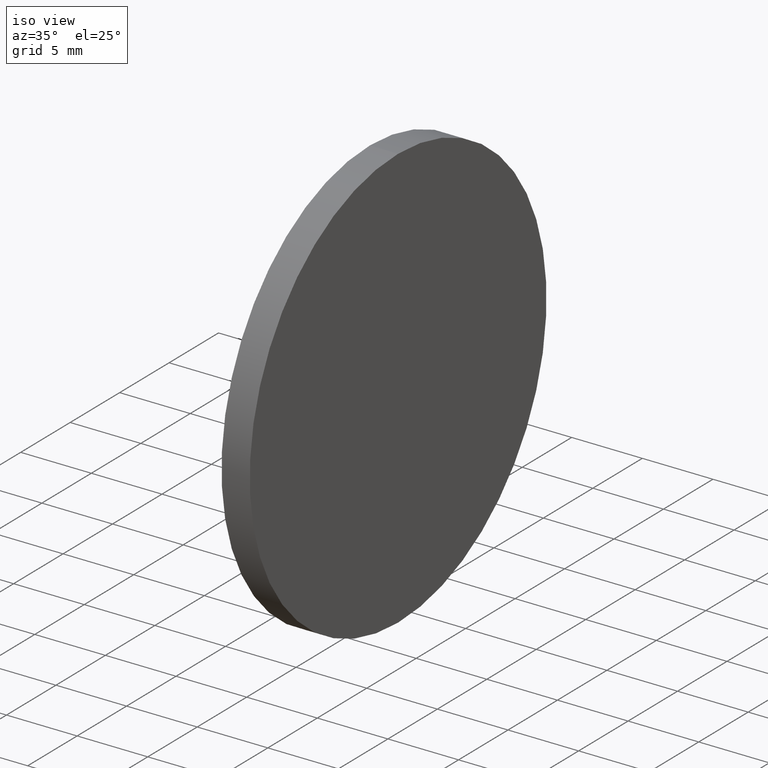
[diagram: clean part render]
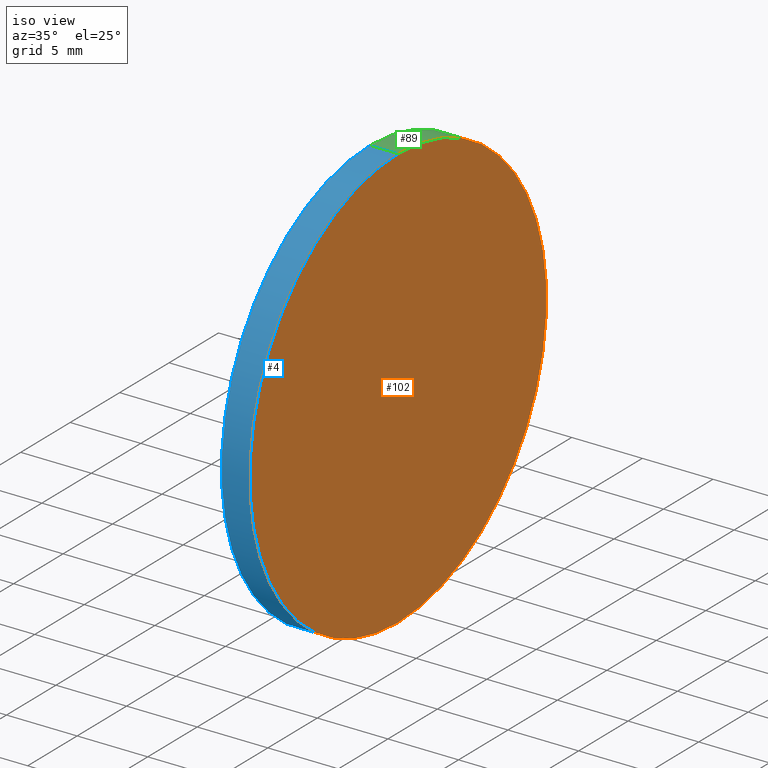
[diagram: same view with three faces highlighted in distinct colors, each labeled with its STEP entity id]
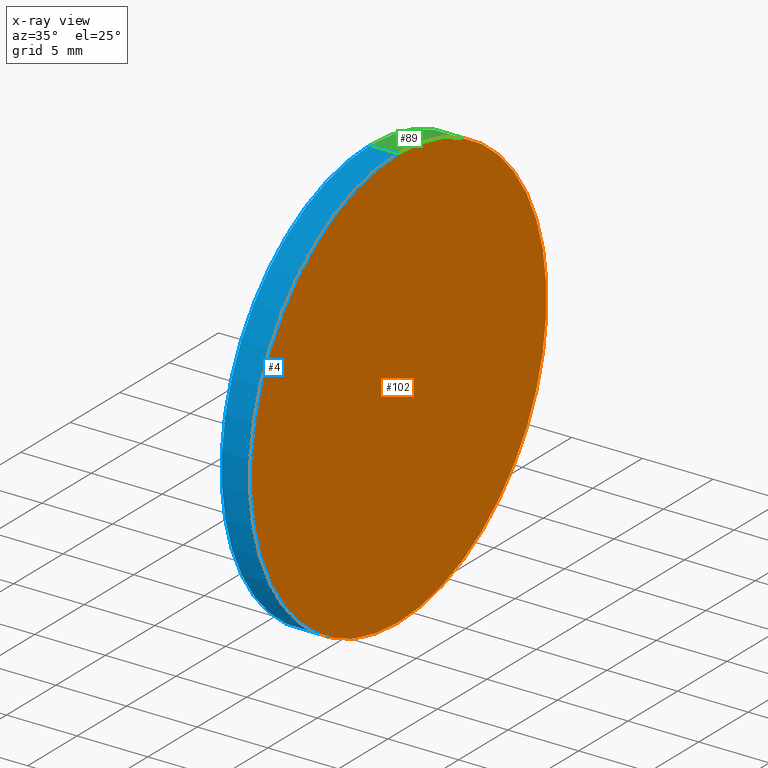
[diagram: x-ray of the same camera — body ghosted, the three highlighted faces saturated]
A machine part, iso view with three faces highlighted in distinct colors.
The next image is the same camera in x-ray (body ghosted, the three faces saturated) — at least one of them is partly hidden behind the body in this view.
Their STEP definitions:

[orange] entity #102 — the highlighted planar face has unit normal (-1, 0, -0).
#11 = PLANE ( 'NONE',  #92 ) ;
#24 = AXIS2_PLACEMENT_3D ( 'NONE', #118, #109, #137 ) ;
#31 = CARTESIAN_POINT ( 'NONE',  ( 262.1163036661670300, 92.29317934901541800, 0.0000000000000000000 ) ) ;
#33 = VERTEX_POINT ( 'NONE', #105 ) ;
#34 = CARTESIAN_POINT ( 'NONE',  ( 262.1163036661670300, 77.29317934901541800, 0.0000000000000000000 ) ) ;
#39 = EDGE_CURVE ( 'NONE', #33, #65, #74, .T. ) ;
#44 = EDGE_LOOP ( 'NONE', ( #120, #115 ) ) ;
#60 = FACE_OUTER_BOUND ( 'NONE', #44, .T. ) ;
#65 = VERTEX_POINT ( 'NONE', #66 ) ;
#66 = CARTESIAN_POINT ( 'NONE',  ( 262.1163036661670300, 77.29317934901541800, 15.00000000000000000 ) ) ;
#70 = DIRECTION ( 'NONE',  ( 0.0000000000000000000, 0.0000000000000000000, 1.000000000000000000 ) ) ;
#74 = CIRCLE ( 'NONE', #24, 15.00000000000000000 ) ;
#92 = AXIS2_PLACEMENT_3D ( 'NONE', #31, #126, #97 ) ;
#97 = DIRECTION ( 'NONE',  ( -0.0000000000000000000, 0.0000000000000000000, 1.000000000000000000 ) ) ;
#101 = AXIS2_PLACEMENT_3D ( 'NONE', #34, #103, #70 ) ;
#102 = ADVANCED_FACE ( 'NONE', ( #60 ), #11, .F. ) ;
#103 = DIRECTION ( 'NONE',  ( -1.000000000000000000, -0.0000000000000000000, -0.0000000000000000000 ) ) ;
#105 = CARTESIAN_POINT ( 'NONE',  ( 262.1163036661670300, 77.29317934901541800, -15.00000000000000000 ) ) ;
#109 = DIRECTION ( 'NONE',  ( -1.000000000000000000, -0.0000000000000000000, -0.0000000000000000000 ) ) ;
#114 = EDGE_CURVE ( 'NONE', #65, #33, #134, .T. ) ;
#115 = ORIENTED_EDGE ( 'NONE', *, *, #39, .F. ) ;
#118 = CARTESIAN_POINT ( 'NONE',  ( 262.1163036661670300, 77.29317934901541800, 0.0000000000000000000 ) ) ;
#120 = ORIENTED_EDGE ( 'NONE', *, *, #114, .F. ) ;
#126 = DIRECTION ( 'NONE',  ( -1.000000000000000000, 0.0000000000000000000, -0.0000000000000000000 ) ) ;
#134 = CIRCLE ( 'NONE', #101, 15.00000000000000000 ) ;
#137 = DIRECTION ( 'NONE',  ( 0.0000000000000000000, 0.0000000000000000000, 1.000000000000000000 ) ) ;

[blue] entity #4 — the highlighted cylindrical surface (partial cylindrical patch) has radius 15 mm, axis along (-1, -0, -0).
#2 = CARTESIAN_POINT ( 'NONE',  ( 260.1163036661670800, 77.29317934901541800, 0.0000000000000000000 ) ) ;
#3 = VERTEX_POINT ( 'NONE', #84 ) ;
#4 = ADVANCED_FACE ( 'NONE', ( #63 ), #40, .T. ) ;
#6 = VECTOR ( 'NONE', #111, 1000.000000000000000 ) ;
#14 = CARTESIAN_POINT ( 'NONE',  ( 260.1163036661670800, 77.29317934901541800, -15.00000000000000000 ) ) ;
#18 = VERTEX_POINT ( 'NONE', #14 ) ;
#24 = AXIS2_PLACEMENT_3D ( 'NONE', #118, #109, #137 ) ;
#29 = DIRECTION ( 'NONE',  ( 0.0000000000000000000, 0.0000000000000000000, 1.000000000000000000 ) ) ;
#33 = VERTEX_POINT ( 'NONE', #105 ) ;
#38 = VECTOR ( 'NONE', #41, 1000.000000000000000 ) ;
#39 = EDGE_CURVE ( 'NONE', #33, #65, #74, .T. ) ;
#40 = CYLINDRICAL_SURFACE ( 'NONE', #51, 15.00000000000000000 ) ;
#41 = DIRECTION ( 'NONE',  ( -1.000000000000000000, -0.0000000000000000000, -0.0000000000000000000 ) ) ;
#48 = EDGE_LOOP ( 'NONE', ( #139, #95, #117, #135 ) ) ;
#51 = AXIS2_PLACEMENT_3D ( 'NONE', #119, #76, #29 ) ;
#54 = EDGE_CURVE ( 'NONE', #33, #18, #83, .T. ) ;
#57 = DIRECTION ( 'NONE',  ( 0.0000000000000000000, 0.0000000000000000000, 1.000000000000000000 ) ) ;
#63 = FACE_OUTER_BOUND ( 'NONE', #48, .T. ) ;
#65 = VERTEX_POINT ( 'NONE', #66 ) ;
#66 = CARTESIAN_POINT ( 'NONE',  ( 262.1163036661670300, 77.29317934901541800, 15.00000000000000000 ) ) ;
#67 = CIRCLE ( 'NONE', #82, 15.00000000000000000 ) ;
#74 = CIRCLE ( 'NONE', #24, 15.00000000000000000 ) ;
#76 = DIRECTION ( 'NONE',  ( -1.000000000000000000, -0.0000000000000000000, -0.0000000000000000000 ) ) ;
#77 = DIRECTION ( 'NONE',  ( -1.000000000000000000, -0.0000000000000000000, -0.0000000000000000000 ) ) ;
#82 = AXIS2_PLACEMENT_3D ( 'NONE', #2, #77, #57 ) ;
#83 = LINE ( 'NONE', #87, #38 ) ;
#84 = CARTESIAN_POINT ( 'NONE',  ( 260.1163036661670800, 77.29317934901541800, 15.00000000000000000 ) ) ;
#87 = CARTESIAN_POINT ( 'NONE',  ( 254.0008019926160300, 77.29317934901541800, -15.00000000000000000 ) ) ;
#90 = CARTESIAN_POINT ( 'NONE',  ( 254.0008019926160300, 77.29317934901541800, 15.00000000000000000 ) ) ;
#93 = LINE ( 'NONE', #90, #6 ) ;
#95 = ORIENTED_EDGE ( 'NONE', *, *, #39, .T. ) ;
#105 = CARTESIAN_POINT ( 'NONE',  ( 262.1163036661670300, 77.29317934901541800, -15.00000000000000000 ) ) ;
#109 = DIRECTION ( 'NONE',  ( -1.000000000000000000, -0.0000000000000000000, -0.0000000000000000000 ) ) ;
#111 = DIRECTION ( 'NONE',  ( -1.000000000000000000, -0.0000000000000000000, -0.0000000000000000000 ) ) ;
#117 = ORIENTED_EDGE ( 'NONE', *, *, #124, .T. ) ;
#118 = CARTESIAN_POINT ( 'NONE',  ( 262.1163036661670300, 77.29317934901541800, 0.0000000000000000000 ) ) ;
#119 = CARTESIAN_POINT ( 'NONE',  ( 254.0008019926160300, 77.29317934901541800, 0.0000000000000000000 ) ) ;
#124 = EDGE_CURVE ( 'NONE', #65, #3, #93, .T. ) ;
#135 = ORIENTED_EDGE ( 'NONE', *, *, #138, .F. ) ;
#137 = DIRECTION ( 'NONE',  ( 0.0000000000000000000, 0.0000000000000000000, 1.000000000000000000 ) ) ;
#138 = EDGE_CURVE ( 'NONE', #18, #3, #67, .T. ) ;
#139 = ORIENTED_EDGE ( 'NONE', *, *, #54, .F. ) ;

[green] entity #89 — the highlighted cylindrical surface (partial cylindrical patch) has radius 15 mm, axis along (-1, -0, -0).
#3 = VERTEX_POINT ( 'NONE', #84 ) ;
#6 = VECTOR ( 'NONE', #111, 1000.000000000000000 ) ;
#14 = CARTESIAN_POINT ( 'NONE',  ( 260.1163036661670800, 77.29317934901541800, -15.00000000000000000 ) ) ;
#18 = VERTEX_POINT ( 'NONE', #14 ) ;
#19 = EDGE_CURVE ( 'NONE', #3, #18, #116, .T. ) ;
#20 = DIRECTION ( 'NONE',  ( -1.000000000000000000, -0.0000000000000000000, -0.0000000000000000000 ) ) ;
#26 = ORIENTED_EDGE ( 'NONE', *, *, #54, .T. ) ;
#28 = AXIS2_PLACEMENT_3D ( 'NONE', #99, #75, #108 ) ;
#30 = ORIENTED_EDGE ( 'NONE', *, *, #114, .T. ) ;
#33 = VERTEX_POINT ( 'NONE', #105 ) ;
#34 = CARTESIAN_POINT ( 'NONE',  ( 262.1163036661670300, 77.29317934901541800, 0.0000000000000000000 ) ) ;
#38 = VECTOR ( 'NONE', #41, 1000.000000000000000 ) ;
#41 = DIRECTION ( 'NONE',  ( -1.000000000000000000, -0.0000000000000000000, -0.0000000000000000000 ) ) ;
#53 = DIRECTION ( 'NONE',  ( 0.0000000000000000000, 0.0000000000000000000, 1.000000000000000000 ) ) ;
#54 = EDGE_CURVE ( 'NONE', #33, #18, #83, .T. ) ;
#55 = CARTESIAN_POINT ( 'NONE',  ( 254.0008019926160300, 77.29317934901541800, 0.0000000000000000000 ) ) ;
#65 = VERTEX_POINT ( 'NONE', #66 ) ;
#66 = CARTESIAN_POINT ( 'NONE',  ( 262.1163036661670300, 77.29317934901541800, 15.00000000000000000 ) ) ;
#70 = DIRECTION ( 'NONE',  ( 0.0000000000000000000, 0.0000000000000000000, 1.000000000000000000 ) ) ;
#73 = AXIS2_PLACEMENT_3D ( 'NONE', #55, #20, #53 ) ;
#75 = DIRECTION ( 'NONE',  ( -1.000000000000000000, -0.0000000000000000000, -0.0000000000000000000 ) ) ;
#81 = FACE_OUTER_BOUND ( 'NONE', #112, .T. ) ;
#83 = LINE ( 'NONE', #87, #38 ) ;
#84 = CARTESIAN_POINT ( 'NONE',  ( 260.1163036661670800, 77.29317934901541800, 15.00000000000000000 ) ) ;
#85 = CYLINDRICAL_SURFACE ( 'NONE', #73, 15.00000000000000000 ) ;
#87 = CARTESIAN_POINT ( 'NONE',  ( 254.0008019926160300, 77.29317934901541800, -15.00000000000000000 ) ) ;
#89 = ADVANCED_FACE ( 'NONE', ( #81 ), #85, .T. ) ;
#90 = CARTESIAN_POINT ( 'NONE',  ( 254.0008019926160300, 77.29317934901541800, 15.00000000000000000 ) ) ;
#93 = LINE ( 'NONE', #90, #6 ) ;
#99 = CARTESIAN_POINT ( 'NONE',  ( 260.1163036661670800, 77.29317934901541800, 0.0000000000000000000 ) ) ;
#101 = AXIS2_PLACEMENT_3D ( 'NONE', #34, #103, #70 ) ;
#103 = DIRECTION ( 'NONE',  ( -1.000000000000000000, -0.0000000000000000000, -0.0000000000000000000 ) ) ;
#105 = CARTESIAN_POINT ( 'NONE',  ( 262.1163036661670300, 77.29317934901541800, -15.00000000000000000 ) ) ;
#108 = DIRECTION ( 'NONE',  ( 0.0000000000000000000, 0.0000000000000000000, 1.000000000000000000 ) ) ;
#111 = DIRECTION ( 'NONE',  ( -1.000000000000000000, -0.0000000000000000000, -0.0000000000000000000 ) ) ;
#112 = EDGE_LOOP ( 'NONE', ( #30, #26, #129, #121 ) ) ;
#114 = EDGE_CURVE ( 'NONE', #65, #33, #134, .T. ) ;
#116 = CIRCLE ( 'NONE', #28, 15.00000000000000000 ) ;
#121 = ORIENTED_EDGE ( 'NONE', *, *, #124, .F. ) ;
#124 = EDGE_CURVE ( 'NONE', #65, #3, #93, .T. ) ;
#129 = ORIENTED_EDGE ( 'NONE', *, *, #19, .F. ) ;
#134 = CIRCLE ( 'NONE', #101, 15.00000000000000000 ) ;